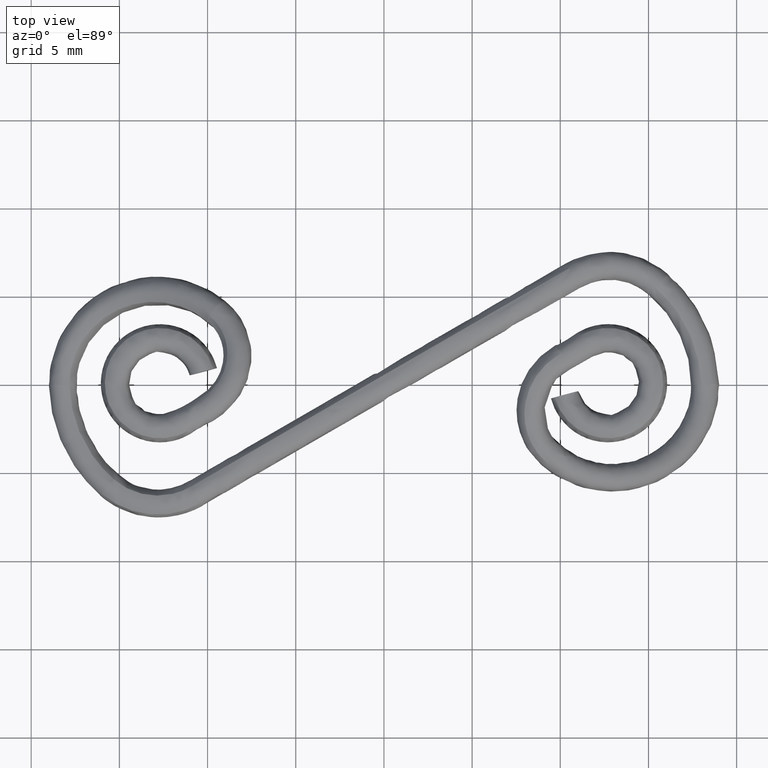
[diagram: clean part render]
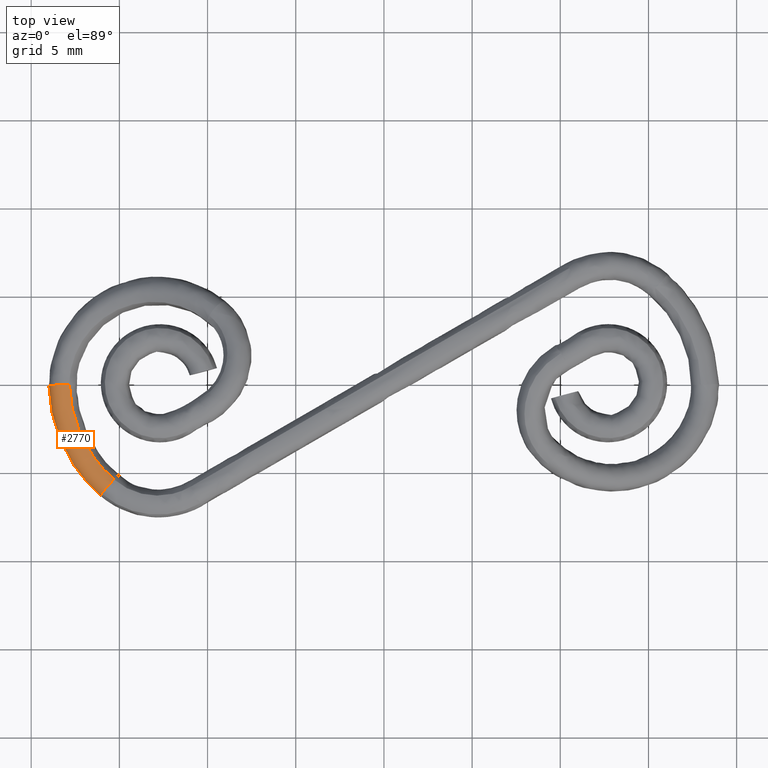
[diagram: same view with one face highlighted and labeled with its STEP entity id]
A machine part, top view. The second image highlights one B-rep face of the part: STEP entity #2770.
In plain terms, the highlighted face is a freeform B-spline surface patch.
Its self-contained STEP definition (entity closure, byte-faithful):
#2006=CARTESIAN_POINT('',(-17.833085694830402,0.003582177200883,-0.445030937167454));
#2007=VERTEX_POINT('',#2006);
#2310=CARTESIAN_POINT('',(-18.995212699341270,-0.034559861227495,-1.076522117085164));
#2311=VERTEX_POINT('',#2310);
#2343=CARTESIAN_POINT('',(-18.283263083135051,-0.009728729235690,-0.360731011044658));
#2344=VERTEX_POINT('',#2343);
#2345=CARTESIAN_POINT('',(-18.995212699341270,-0.034559861227495,-1.076522117085164));
#2346=CARTESIAN_POINT('',(-18.990183414664671,-0.034209735787779,-1.025880291059445));
#2347=CARTESIAN_POINT('',(-18.980560878651620,-0.033721653956856,-0.976430478797931));
#2348=CARTESIAN_POINT('',(-18.959095505627019,-0.032774819921294,-0.903155581389389));
#2349=CARTESIAN_POINT('',(-18.950541365999712,-0.032414757280337,-0.878457785570878));
#2350=CARTESIAN_POINT('',(-18.930865657315518,-0.031617566790104,-0.829737136008487));
#2351=CARTESIAN_POINT('',(-18.919701618914370,-0.031178960182447,-0.805671912306604));
#2352=CARTESIAN_POINT('',(-18.883003153541178,-0.029774115096733,-0.736202204098513));
#2353=CARTESIAN_POINT('',(-18.854126194619159,-0.028712264050892,-0.692912727548127));
#2354=CARTESIAN_POINT('',(-18.788068967951581,-0.026352757894737,-0.612025137938582));
#2355=CARTESIAN_POINT('',(-18.750555703463231,-0.025044182268171,-0.574273371137594));
#2356=CARTESIAN_POINT('',(-18.670247464287460,-0.022296976166425,-0.507584260280179));
#2357=CARTESIAN_POINT('',(-18.627172078640591,-0.020847949946104,-0.478204920617126));
#2358=CARTESIAN_POINT('',(-18.557979020135839,-0.018556205178111,-0.440352600338216));
#2359=CARTESIAN_POINT('',(-18.534162897220359,-0.017773105474663,-0.428812298119791));
#2360=CARTESIAN_POINT('',(-18.486006835333850,-0.016200865269154,-0.408385548066583));
#2361=CARTESIAN_POINT('',(-18.461540592482621,-0.015407530508722,-0.399426512340251));
#2362=CARTESIAN_POINT('',(-18.411821849319409,-0.013806283676916,-0.384048889054284));
#2363=CARTESIAN_POINT('',(-18.386571107042091,-0.012998372180708,-0.377624624502130));
#2364=CARTESIAN_POINT('',(-18.335297188710548,-0.011368306525938,-0.367271870208704));
#2365=CARTESIAN_POINT('',(-18.309155128213920,-0.010542975509549,-0.363344555343520));
#2366=CARTESIAN_POINT('',(-18.283263083135051,-0.009728729235690,-0.360731011044658));
#2367=B_SPLINE_CURVE_WITH_KNOTS('',3,(#2345,#2346,#2347,#2348,#2349,#2350,#2351,#2352,#2353,#2354,#2355,#2356,#2357,#2358,#2359,#2360,#2361,#2362,#2363,#2364,#2365,#2366),.UNSPECIFIED.,.F.,.U.,(4,2,2,2,2,2,2,2,2,2,4),(0.564728758409307,0.625000000000001,0.656250000000001,0.687500000000001,0.749999999999999,0.812499999999998,0.874999999999996,0.906249999999997,0.937499999999998,0.968749999999999,1.0),.UNSPECIFIED.);
#2368=EDGE_CURVE('',#2311,#2344,#2367,.T.);
#2370=CARTESIAN_POINT('',(-17.833085694830402,0.003582177200883,-0.445030937167454));
#2371=CARTESIAN_POINT('',(-17.877508303615500,0.002336285195617,-0.422099722583306));
#2372=CARTESIAN_POINT('',(-17.923988404564341,0.001010077807603,-0.403583291696477));
#2373=CARTESIAN_POINT('',(-17.997744426962068,-0.001130283733586,-0.381996659881379));
#2374=CARTESIAN_POINT('',(-18.023450383026841,-0.001882544597691,-0.375832944024577));
#2375=CARTESIAN_POINT('',(-18.074847943515021,-0.003399313608830,-0.366090805655348));
#2376=CARTESIAN_POINT('',(-18.126485200630661,-0.004935684177726,-0.358856140019408));
#2377=CARTESIAN_POINT('',(-18.178592927850829,-0.006511838310049,-0.356543484380122));
#2378=CARTESIAN_POINT('',(-18.230940403344711,-0.008108753064563,-0.356739203003358));
#2379=CARTESIAN_POINT('',(-18.257347257485570,-0.008921164900141,-0.358115062173495));
#2380=CARTESIAN_POINT('',(-18.283263083135051,-0.009728729235690,-0.360731011044658));
#2381=B_SPLINE_CURVE_WITH_KNOTS('',3,(#2370,#2371,#2372,#2373,#2374,#2375,#2376,#2377,#2378,#2379,#2380),.UNSPECIFIED.,.F.,.U.,(4,2,2,1,2,4),(0.815008276017463,0.874999999999995,0.906249999999996,0.937499999999998,0.968749999999999,1.0),.UNSPECIFIED.);
#2382=EDGE_CURVE('',#2007,#2344,#2381,.T.);
#2525=CARTESIAN_POINT('',(-16.063434069822140,-6.285532724836747,-0.732027460513589));
#2526=VERTEX_POINT('',#2525);
#2560=CARTESIAN_POINT('',(-18.995212699341270,-0.034559861227495,-1.076522117085164));
#2561=CARTESIAN_POINT('',(-18.994753114231340,-0.042190714739241,-1.076470403450985));
#2562=CARTESIAN_POINT('',(-18.994293634851591,-0.049821644478505,-1.076418678402798));
#2563=CARTESIAN_POINT('',(-18.961461920416632,-0.595083309647316,-1.072722708342077));
#2564=CARTESIAN_POINT('',(-18.905432522108629,-1.211401375385785,-1.065808753666684));
#2565=CARTESIAN_POINT('',(-18.632386082069129,-2.376219363564978,-1.031291297255236));
#2566=CARTESIAN_POINT('',(-18.432996355000999,-2.942548427536349,-1.006184067864000));
#2567=CARTESIAN_POINT('',(-17.926606619778660,-4.015435569912562,-0.944659726472466));
#2568=CARTESIAN_POINT('',(-17.623625658739190,-4.520997456897476,-0.908458952960438));
#2569=CARTESIAN_POINT('',(-16.906189461921080,-5.474985710992936,-0.825271592911736));
#2570=CARTESIAN_POINT('',(-16.466205263281100,-5.908756393668883,-0.776361076540991));
#2571=CARTESIAN_POINT('',(-16.070173317813339,-6.279228013536332,-0.732769323335411));
#2572=CARTESIAN_POINT('',(-16.066803578005899,-6.282380266718022,-0.732398411676271));
#2573=CARTESIAN_POINT('',(-16.063434069822140,-6.285532724836747,-0.732027460513589));
#2574=B_SPLINE_CURVE_WITH_KNOTS('',3,(#2560,#2561,#2562,#2563,#2564,#2565,#2566,#2567,#2568,#2569,#2570,#2571,#2572,#2573),.UNSPECIFIED.,.F.,.U.,(4,2,2,2,2,2,4),(-0.003548448645899,0.0,0.250000000000000,0.500000000000000,0.750000000000000,1.0,1.002145458402405),.UNSPECIFIED.);
#2575=EDGE_CURVE('',#2311,#2526,#2574,.T.);
#2580=CARTESIAN_POINT('',(-15.304851413509130,-5.374076107252367,-0.145736460972759));
#2581=VERTEX_POINT('',#2580);
#2582=CARTESIAN_POINT('',(-17.833085694830402,0.003582177200883,-0.445030937167454));
#2583=CARTESIAN_POINT('',(-17.800755447226461,-0.528958818611298,-0.441383791266423));
#2584=CARTESIAN_POINT('',(-17.754618835813659,-1.019336737669684,-0.435699404056552));
#2585=CARTESIAN_POINT('',(-17.523746917160850,-2.005296266330238,-0.406089153463904));
#2586=CARTESIAN_POINT('',(-17.353458767329300,-2.490417048722055,-0.384283465294910));
#2587=CARTESIAN_POINT('',(-16.919330638118410,-3.411087418581369,-0.330864868429536));
#2588=CARTESIAN_POINT('',(-16.654917099836211,-3.851903326599156,-0.298960802675953));
#2589=CARTESIAN_POINT('',(-16.047103847550471,-4.660642932680692,-0.227921985974622));
#2590=CARTESIAN_POINT('',(-15.695286486849501,-5.008665508058274,-0.188716401214927));
#2591=CARTESIAN_POINT('',(-15.304851413509130,-5.374076107252367,-0.145736460972759));
#2592=B_SPLINE_CURVE_WITH_KNOTS('',3,(#2582,#2583,#2584,#2585,#2586,#2587,#2588,#2589,#2590,#2591),.UNSPECIFIED.,.F.,.U.,(4,2,2,2,4),(0.002030396798201,0.250000000000000,0.500000000000000,0.750000000000000,0.998826256418047),.UNSPECIFIED.);
#2593=EDGE_CURVE('',#2007,#2581,#2592,.T.);
#2642=CARTESIAN_POINT('',(-17.830711734766961,0.079505436114506,-0.449125517270216));
#2643=CARTESIAN_POINT('',(-18.017857459611069,0.068909402576725,-0.349931600535596));
#2644=CARTESIAN_POINT('',(-18.245061141661068,0.055365633330514,-0.329759043824598));
#2645=CARTESIAN_POINT('',(-18.645819582757841,0.030366972416326,-0.457779343945886));
#2646=CARTESIAN_POINT('',(-18.902239302485722,0.013454856603396,-0.674958569119222));
#2647=CARTESIAN_POINT('',(-18.989210217335561,0.006136459951045,-0.982000335140638));
#2648=CARTESIAN_POINT('',(-18.998361621741150,0.004890233699481,-1.084541290857908));
#2649=CARTESIAN_POINT('',(-17.798028179477239,-0.482297075730041,-0.445481574835859));
#2650=CARTESIAN_POINT('',(-17.985279687880180,-0.491579314112333,-0.346300894918049));
#2651=CARTESIAN_POINT('',(-18.212620299343818,-0.503423726878158,-0.326145470601644));
#2652=CARTESIAN_POINT('',(-18.613634142800180,-0.525254655592301,-0.454197723609237));
#2653=CARTESIAN_POINT('',(-18.870228751154361,-0.539999150825781,-0.671398826674773));
#2654=CARTESIAN_POINT('',(-18.957278778326170,-0.546339436025108,-0.978450485989074));
#2655=CARTESIAN_POINT('',(-18.966444464176529,-0.547409640748993,-1.080993226898231));
#2656=CARTESIAN_POINT('',(-17.753170929700961,-0.995149313473438,-0.439983456337309));
#2657=CARTESIAN_POINT('',(-17.939026355662762,-1.022244865897291,-0.340627608466653));
#2658=CARTESIAN_POINT('',(-18.164559794278830,-1.057131975901405,-0.320245464622923));
#2659=CARTESIAN_POINT('',(-18.562202813580100,-1.121918858771971,-0.447874873085122));
#2660=CARTESIAN_POINT('',(-18.816489175460241,-1.166059338082150,-0.664786457941640));
#2661=CARTESIAN_POINT('',(-18.902494967459440,-1.185667447302485,-0.971707195907747));
#2662=CARTESIAN_POINT('',(-18.911472128600710,-1.189126074357993,-1.074226312816707));
#2663=CARTESIAN_POINT('',(-17.517087625609459,-2.003361761778508,-0.409701681076694));
#2664=CARTESIAN_POINT('',(-17.697094238984750,-2.055574588023323,-0.309667700880528));
#2665=CARTESIAN_POINT('',(-17.915061897417139,-2.122768921346066,-0.288407919032122));
#2666=CARTESIAN_POINT('',(-18.298600937477030,-2.247501352006364,-0.414400586768827));
#2667=CARTESIAN_POINT('',(-18.543235598022669,-2.332444261929903,-0.630191589164622));
#2668=CARTESIAN_POINT('',(-18.624885198873550,-2.370113553398923,-0.936605724918119));
#2669=CARTESIAN_POINT('',(-18.633078194954521,-2.376743220977347,-1.039033457702658));
#2670=CARTESIAN_POINT('',(-17.346950980563690,-2.488052795098256,-0.387912940247546));
#2671=CARTESIAN_POINT('',(-17.522877391054390,-2.551868560056077,-0.287416236722012));
#2672=CARTESIAN_POINT('',(-17.735584783768189,-2.633896943478062,-0.265559824907875));
#2673=CARTESIAN_POINT('',(-18.109344870890439,-2.786014651229596,-0.390443222151343));
#2674=CARTESIAN_POINT('',(-18.347308777775819,-2.889488267933881,-0.605477435414878));
#2675=CARTESIAN_POINT('',(-18.425981845946140,-2.935182889970727,-0.911553732300278));
#2676=CARTESIAN_POINT('',(-18.433646774883890,-2.943180703075442,-1.013921493638121));
#2677=CARTESIAN_POINT('',(-16.913204361637138,-3.407911276997306,-0.334536689275941));
#2678=CARTESIAN_POINT('',(-17.078849337316640,-3.493649638582086,-0.232886226437542));
#2679=CARTESIAN_POINT('',(-17.278387797883429,-3.603607473082874,-0.209552329033000));
#2680=CARTESIAN_POINT('',(-17.627798801937249,-3.807134119994916,-0.331704353309947));
#2681=CARTESIAN_POINT('',(-17.849256636002700,-3.945274476605791,-0.544887356577653));
#2682=CARTESIAN_POINT('',(-17.920732497508862,-4.005786929372865,-0.850157063475623));
#2683=CARTESIAN_POINT('',(-17.927158977982248,-4.016264730376179,-0.952386172572371));
#2684=CARTESIAN_POINT('',(-16.648993947298671,-3.848382158890517,-0.302655026413066));
#2685=CARTESIAN_POINT('',(-16.809164467155782,-3.943436888999124,-0.200394466645489));
#2686=CARTESIAN_POINT('',(-17.001683675700249,-4.065268546496428,-0.176278445995383));
#2687=CARTESIAN_POINT('',(-17.338104907882169,-4.290658374036444,-0.296983283842612));
#2688=CARTESIAN_POINT('',(-17.550748137874500,-4.443547636580746,-0.509184416072614));
#2689=CARTESIAN_POINT('',(-17.618365993384970,-4.510373876695910,-0.814024636629126));
#2690=CARTESIAN_POINT('',(-17.624125209633700,-4.521910669819905,-0.916179524780017));
#2691=CARTESIAN_POINT('',(-16.030316368344010,-4.671575946630958,-0.230342395565921));
#2692=CARTESIAN_POINT('',(-16.174539627890361,-4.787922515502395,-0.126314266328938));
#2693=CARTESIAN_POINT('',(-16.346802617761419,-4.936708474322071,-0.099953976104609));
#2694=CARTESIAN_POINT('',(-16.646033104877819,-5.211445516514738,-0.216539699562466));
#2695=CARTESIAN_POINT('',(-16.833672102370610,-5.397399846673374,-0.425972564818943));
#2696=CARTESIAN_POINT('',(-16.890724542621790,-5.478013255661323,-0.729644894829999));
#2697=CARTESIAN_POINT('',(-16.894744683390471,-5.491774904750256,-0.831607988635902));
#2698=CARTESIAN_POINT('',(-15.663787440130060,-5.030099202724787,-0.189561260131068));
#2699=CARTESIAN_POINT('',(-15.794721865046871,-5.159378529811179,-0.084069215544651));
#2700=CARTESIAN_POINT('',(-15.950221254201059,-5.324461517165662,-0.055862520846490));
#2701=CARTESIAN_POINT('',(-16.218854248699980,-5.628917138990373,-0.169078588536465));
#2702=CARTESIAN_POINT('',(-16.386065388403420,-5.834690716051910,-0.376262135575350));
#2703=CARTESIAN_POINT('',(-16.434721877739548,-5.923413853474096,-0.679010598060065));
#2704=CARTESIAN_POINT('',(-16.437416983949991,-5.938446405667929,-0.780828041018693));
#2705=CARTESIAN_POINT('',(-15.255685867034771,-5.410755685225260,-0.144670507522350));
#2706=CARTESIAN_POINT('',(-15.387457539422719,-5.539217113369816,-0.039270701040299));
#2707=CARTESIAN_POINT('',(-15.544013168497809,-5.703269379847790,-0.011180351540815));
#2708=CARTESIAN_POINT('',(-15.814574156103010,-6.005845332051636,-0.124608758629670));
#2709=CARTESIAN_POINT('',(-15.983072571667091,-6.210365290025291,-0.331934055967262));
#2710=CARTESIAN_POINT('',(-16.032258280688559,-6.298575346630383,-0.634740755005750));
#2711=CARTESIAN_POINT('',(-16.035036942933932,-6.313527462418867,-0.736567382915366));
#2712=B_SPLINE_SURFACE_WITH_KNOTS('',3,3,((#2642,#2649,#2656,#2663,#2670,#2677,#2684,#2691,#2698,#2705),(#2643,#2650,#2657,#2664,#2671,#2678,#2685,#2692,#2699,#2706),(#2644,#2651,#2658,#2665,#2672,#2679,#2686,#2693,#2700,#2707),(#2645,#2652,#2659,#2666,#2673,#2680,#2687,#2694,#2701,#2708),(#2646,#2653,#2660,#2667,#2674,#2681,#2688,#2695,#2702,#2709),(#2647,#2654,#2661,#2668,#2675,#2682,#2689,#2696,#2703,#2710),(#2648,#2655,#2662,#2669,#2676,#2683,#2690,#2697,#2704,#2711)),.UNSPECIFIED.,.F.,.F.,.U.,(4,2,1,4),(4,2,2,2,4),(0.0,0.636408667069182,1.265011807685971,1.574536047954219),(0.0,1.868317900699655,3.666999664147339,5.465681427595023,7.323560135331562),.UNSPECIFIED.);
#2713=CARTESIAN_POINT('',(-16.001969245800840,-6.177971851380821,-0.405940405065870));
#2714=VERTEX_POINT('',#2713);
#2715=CARTESIAN_POINT('',(-16.063434069822140,-6.285532724836747,-0.732027460513589));
#2716=CARTESIAN_POINT('',(-16.063304233602810,-6.284895299709229,-0.727950409170674));
#2717=CARTESIAN_POINT('',(-16.063153432938371,-6.284234738748305,-0.723874062473523));
#2718=CARTESIAN_POINT('',(-16.060789951403599,-6.274829058706147,-0.667809588443409));
#2719=CARTESIAN_POINT('',(-16.055254744941500,-6.262590033008512,-0.617359976050944));
#2720=CARTESIAN_POINT('',(-16.041980479648860,-6.239002009309281,-0.543974478302454));
#2721=CARTESIAN_POINT('',(-16.036719620953171,-6.230259835503614,-0.519897598361973));
#2722=CARTESIAN_POINT('',(-16.024437905894398,-6.210924141656784,-0.472554163828769));
#2723=CARTESIAN_POINT('',(-16.017402614123309,-6.200317224879674,-0.449309024443132));
#2724=CARTESIAN_POINT('',(-16.007155134283000,-6.185407790737583,-0.419914159871748));
#2725=CARTESIAN_POINT('',(-16.004600212204981,-6.181727040969266,-0.412886850271623));
#2726=CARTESIAN_POINT('',(-16.001969245800840,-6.177971851380821,-0.405940405065870));
#2727=B_SPLINE_CURVE_WITH_KNOTS('',3,(#2715,#2716,#2717,#2718,#2719,#2720,#2721,#2722,#2723,#2724,#2725,#2726),.UNSPECIFIED.,.F.,.U.,(4,2,2,2,2,4),(0.557600578099755,0.562499999999990,0.624999999999991,0.656249999999991,0.687499999999991,0.697468194867861),.UNSPECIFIED.);
#2728=EDGE_CURVE('',#2526,#2714,#2727,.T.);
#2729=ORIENTED_EDGE('',*,*,#2728,.T.);
#2730=CARTESIAN_POINT('',(-15.598247717231800,-5.687003983437430,-0.044274238070324));
#2731=VERTEX_POINT('',#2730);
#2732=CARTESIAN_POINT('',(-16.001969245800840,-6.177971851380821,-0.405940405065870));
#2733=CARTESIAN_POINT('',(-15.988104356431190,-6.158182375738361,-0.369332884511690));
#2734=CARTESIAN_POINT('',(-15.972127541891780,-6.136325535718172,-0.334971153897003));
#2735=CARTESIAN_POINT('',(-15.932719711504550,-6.084135196347403,-0.264430206837966));
#2736=CARTESIAN_POINT('',(-15.908270984355751,-6.052774553855416,-0.229077952979652));
#2737=CARTESIAN_POINT('',(-15.855642587269690,-5.987018600245817,-0.167441761376291));
#2738=CARTESIAN_POINT('',(-15.827262730472571,-5.952347993510751,-0.140715438794802));
#2739=CARTESIAN_POINT('',(-15.781424106914590,-5.897505295750029,-0.107101065000712));
#2740=CARTESIAN_POINT('',(-15.765661024555421,-5.878828701921150,-0.097051804565765));
#2741=CARTESIAN_POINT('',(-15.733695071005650,-5.841310365006822,-0.079612799623927));
#2742=CARTESIAN_POINT('',(-15.717416570199930,-5.822378648364796,-0.072171829156189));
#2743=CARTESIAN_POINT('',(-15.684266894969211,-5.784169170031620,-0.059853983605091));
#2744=CARTESIAN_POINT('',(-15.667398404673181,-5.764892976233865,-0.054965494010639));
#2745=CARTESIAN_POINT('',(-15.633079768378099,-5.726000970484497,-0.047704961525832));
#2746=CARTESIAN_POINT('',(-15.615614602803980,-5.706370532202555,-0.045349583141520));
#2747=CARTESIAN_POINT('',(-15.598247717231800,-5.687003983437430,-0.044274238070324));
#2748=B_SPLINE_CURVE_WITH_KNOTS('',3,(#2732,#2733,#2734,#2735,#2736,#2737,#2738,#2739,#2740,#2741,#2742,#2743,#2744,#2745,#2746,#2747),.UNSPECIFIED.,.F.,.U.,(4,2,2,2,2,2,2,4),(0.697468194867861,0.749999999999993,0.812499999999995,0.874999999999996,0.906249999999997,0.937499999999998,0.968749999999999,1.0),.UNSPECIFIED.);
#2749=EDGE_CURVE('',#2714,#2731,#2748,.T.);
#2750=ORIENTED_EDGE('',*,*,#2749,.T.);
#2751=CARTESIAN_POINT('',(-15.304851413509130,-5.374076107252367,-0.145736460972759));
#2752=CARTESIAN_POINT('',(-15.331780128793669,-5.401338562407539,-0.124223642854989));
#2753=CARTESIAN_POINT('',(-15.359729692731710,-5.430127692973351,-0.106003481369179));
#2754=CARTESIAN_POINT('',(-15.422995529664570,-5.496317295881082,-0.073318781866199));
#2755=CARTESIAN_POINT('',(-15.457895132178860,-5.533467479352483,-0.060622682646350));
#2756=CARTESIAN_POINT('',(-15.510376801752949,-5.590215262354717,-0.048933325039894));
#2757=CARTESIAN_POINT('',(-15.527932373851581,-5.609344549527609,-0.046254345614026));
#2758=CARTESIAN_POINT('',(-15.563169411565360,-5.648037850500573,-0.043377918635226));
#2759=CARTESIAN_POINT('',(-15.580864167711770,-5.667617607962620,-0.043197922061052));
#2760=CARTESIAN_POINT('',(-15.598247717231800,-5.687003983437430,-0.044274238070324));
#2761=B_SPLINE_CURVE_WITH_KNOTS('',3,(#2751,#2752,#2753,#2754,#2755,#2756,#2757,#2758,#2759,#2760),.UNSPECIFIED.,.F.,.U.,(4,2,2,2,4),(0.822236870192342,0.875000000000000,0.937500000000000,0.968750000000000,1.0),.UNSPECIFIED.);
#2762=EDGE_CURVE('',#2581,#2731,#2761,.T.);
#2763=ORIENTED_EDGE('',*,*,#2762,.F.);
#2764=ORIENTED_EDGE('',*,*,#2593,.F.);
#2765=ORIENTED_EDGE('',*,*,#2382,.T.);
#2766=ORIENTED_EDGE('',*,*,#2368,.F.);
#2767=ORIENTED_EDGE('',*,*,#2575,.T.);
#2768=EDGE_LOOP('',(#2729,#2750,#2763,#2764,#2765,#2766,#2767));
#2769=FACE_OUTER_BOUND('',#2768,.T.);
#2770=ADVANCED_FACE('',(#2769),#2712,.T.);